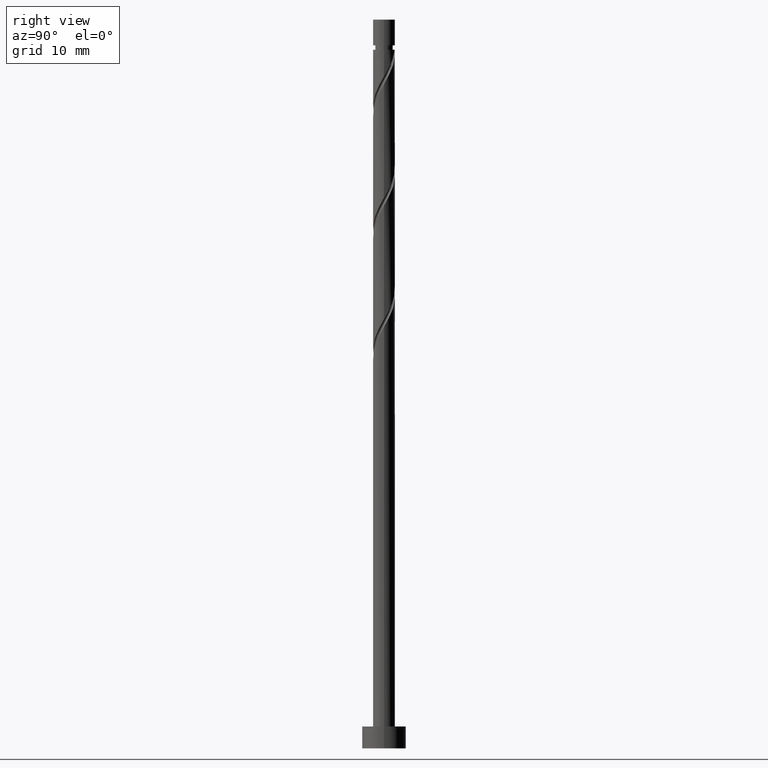
[diagram: clean part render]
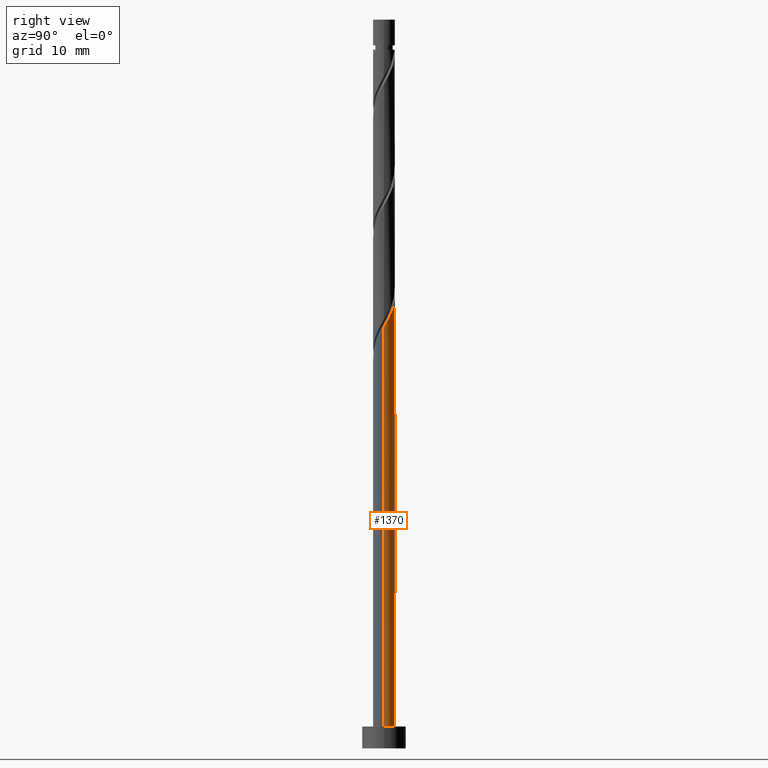
[diagram: same view with one face highlighted and labeled with its STEP entity id]
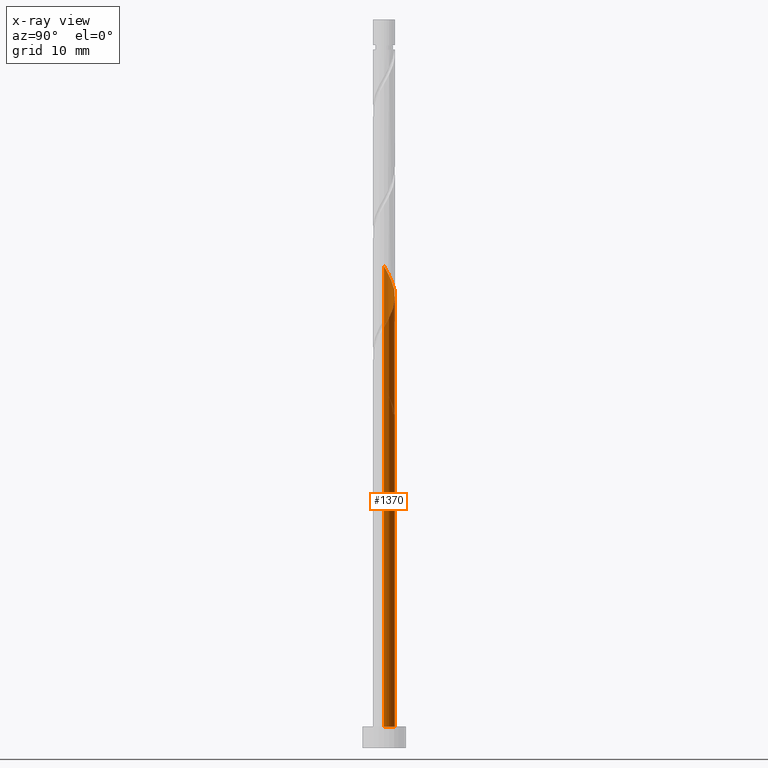
[diagram: x-ray of the same camera — body ghosted, the highlighted face saturated]
A machine part, right view. The second image highlights one B-rep face of the part: STEP entity #1370.
The next image is the same camera in x-ray: the body ghosted, the highlighted face saturated — about 0% of this face is hidden behind the body in this view.
In plain terms, the highlighted cylindrical surface (edge-blend (fillet) strip) has radius 1.5 mm, axis along (-0, -0, -1).
Its self-contained STEP definition (entity closure, byte-faithful):
#3 = CARTESIAN_POINT ( 'NONE',  ( 1.395834070351432699, 0.5492242238340917515, 58.82036622019951722 ) ) ;
#20 = CARTESIAN_POINT ( 'NONE',  ( -1.422305459129120431, 0.4764946809057899468, 65.30184770168098396 ) ) ;
#21 = ORIENTED_EDGE ( 'NONE', *, *, #155, .F. ) ;
#51 = VERTEX_POINT ( 'NONE', #958 ) ;
#62 = EDGE_CURVE ( 'NONE', #1310, #51, #1479, .T. ) ;
#76 = CARTESIAN_POINT ( 'NONE',  ( -0.7832643164158661353, 1.279256428801353929, 46.78332918316247202 ) ) ;
#98 = CARTESIAN_POINT ( 'NONE',  ( -0.2984962311319859229, 1.470000000000002638, 45.85740325723654109 ) ) ;
#127 = CARTESIAN_POINT ( 'NONE',  ( -1.500000000000000222, 0.000000000000000000, 100.0000000000000000 ) ) ;
#136 = CARTESIAN_POINT ( 'NONE',  ( -0.5576968927734301529, 1.417367060811643542, 62.98703288686617441 ) ) ;
#150 = CARTESIAN_POINT ( 'NONE',  ( 0.000000000000000000, 0.000000000000000000, 3.000000000000000000 ) ) ;
#155 = EDGE_CURVE ( 'NONE', #1443, #458, #1381, .T. ) ;
#164 = CARTESIAN_POINT ( 'NONE',  ( 0.000000000000000000, 0.000000000000000000, 100.0000000000000000 ) ) ;
#202 = CARTESIAN_POINT ( 'NONE',  ( -1.422305459129120431, 0.4764946809057899468, 48.63518103501434098 ) ) ;
#227 = CARTESIAN_POINT ( 'NONE',  ( -1.500000000000000222, 1.599963317172324716E-14, 50.55492481222527346 ) ) ;
#241 = CARTESIAN_POINT ( 'NONE',  ( 1.492677119472048064, 0.3031010166390168403, 58.35740325723656241 ) ) ;
#275 = CARTESIAN_POINT ( 'NONE',  ( -1.499500723504462174, 0.03869858149331632108, 50.48703288686618151 ) ) ;
#283 = VERTEX_POINT ( 'NONE', #652 ) ;
#287 = EDGE_LOOP ( 'NONE', ( #695, #1054, #1359, #21, #703, #642, #863, #674 ) ) ;
#290 = CARTESIAN_POINT ( 'NONE',  ( -1.173559165389830294, 0.9342156524751292768, 47.70925510908840295 ) ) ;
#297 = CARTESIAN_POINT ( 'NONE',  ( -0.4838453794137441144, 1.444246813430079435, 47.24629214612541972 ) ) ;
#313 = CARTESIAN_POINT ( 'NONE',  ( -0.5576968927734301529, 1.417367060811643542, 46.32036622019950300 ) ) ;
#315 = CARTESIAN_POINT ( 'NONE',  ( -1.500000000000002665, -3.111039783390612723E-15, 66.15988170224781584 ) ) ;
#322 = CARTESIAN_POINT ( 'NONE',  ( -1.338286590721358804, 0.7272855081591944604, 48.17221807205135775 ) ) ;
#329 = CARTESIAN_POINT ( 'NONE',  ( -0.7832643164158661353, 1.279256428801353929, 63.44999584982913632 ) ) ;
#332 = VECTOR ( 'NONE', #1391, 1000.000000000000000 ) ;
#347 = CARTESIAN_POINT ( 'NONE',  ( -1.500000000000000222, 0.000000000000000000, 100.0000000000000000 ) ) ;
#354 = CARTESIAN_POINT ( 'NONE',  ( -0.03929556949054227588, 1.522632939188361734, 62.06110696094025059 ) ) ;
#362 = CARTESIAN_POINT ( 'NONE',  ( -1.500000000000002665, -3.111039783390612328E-15, 66.15988170224781584 ) ) ;
#381 = EDGE_CURVE ( 'NONE', #1320, #51, #910, .T. ) ;
#383 = CARTESIAN_POINT ( 'NONE',  ( 0.03929556949054253956, 1.522632939188359069, 46.32036622019948879 ) ) ;
#396 = CARTESIAN_POINT ( 'NONE',  ( -1.499999999999999778, 0.01935251149803968868, 50.52090743829292308 ) ) ;
#402 = CARTESIAN_POINT ( 'NONE',  ( 0.2984962311319864781, 1.470000000000000417, 45.85740325723654109 ) ) ;
#407 = DIRECTION ( 'NONE',  ( -1.000000000000000000, 0.000000000000000000, 0.000000000000000000 ) ) ;
#411 = CARTESIAN_POINT ( 'NONE',  ( -1.500000000000002442, 1.060666624829452762E-15, 49.49321503558111601 ) ) ;
#455 = CARTESIAN_POINT ( 'NONE',  ( 1.499500723504464617, 0.03869858149331611291, 57.89444029427359339 ) ) ;
#458 = VERTEX_POINT ( 'NONE', #1262 ) ;
#464 = CARTESIAN_POINT ( 'NONE',  ( -1.500000000000005329, 0.2445815577306776900, 65.72996218988220107 ) ) ;
#467 = EDGE_CURVE ( 'NONE', #1303, #1310, #812, .T. ) ;
#505 = CARTESIAN_POINT ( 'NONE',  ( -1.123809227997131899, 0.9935053190942115808, 48.63518103501432677 ) ) ;
#512 = EDGE_CURVE ( 'NONE', #283, #1303, #706, .T. ) ;
#536 = EDGE_CURVE ( 'NONE', #283, #559, #929, .T. ) ;
#547 = AXIS2_PLACEMENT_3D ( 'NONE', #150, #1425, #1063 ) ;
#559 = VERTEX_POINT ( 'NONE', #1367 ) ;
#575 = CARTESIAN_POINT ( 'NONE',  ( -1.008831740058302451, 1.141145796791064315, 63.91295881279211955 ) ) ;
#600 = DIRECTION ( 'NONE',  ( -0.000000000000000000, -0.000000000000000000, -1.000000000000000000 ) ) ;
#640 =( BOUNDED_CURVE ( )  B_SPLINE_CURVE ( 2, ( #1450, #313, #76, #1234, #290, #322, #202, #773, #411 ),
 .UNSPECIFIED., .F., .T. ) 
 B_SPLINE_CURVE_WITH_KNOTS ( ( 3, 2, 2, 2, 3 ),
 ( 0.000000000000000000, 0.01388888888888883955, 0.02777777777777779011, 0.04166666666666662966, 0.05452480538552896550 ),
 .UNSPECIFIED. ) 
 CURVE ( )  GEOMETRIC_REPRESENTATION_ITEM ( )  RATIONAL_B_SPLINE_CURVE ( ( 0.9090909090909138346, 0.8952797754656482976, 0.9090909090909138346, 0.8952797754656482976, 0.9090909090909138346, 0.8952797754656482976, 0.9090909090909138346, 0.8963047551055884909, 0.9071930855141259187 ) ) 
 REPRESENTATION_ITEM ( '' )  );
#642 = ORIENTED_EDGE ( 'NONE', *, *, #381, .T. ) ;
#652 = CARTESIAN_POINT ( 'NONE',  ( 1.500000000000002442, -1.079340333013069849E-15, 57.82654836891445171 ) ) ;
#671 = EDGE_CURVE ( 'NONE', #559, #458, #1468, .T. ) ;
#674 = ORIENTED_EDGE ( 'NONE', *, *, #467, .F. ) ;
#675 = AXIS2_PLACEMENT_3D ( 'NONE', #164, #600, #1073 ) ;
#683 = CARTESIAN_POINT ( 'NONE',  ( 0.4838453794137458908, 1.444246813430081433, 61.13518103501431966 ) ) ;
#695 = ORIENTED_EDGE ( 'NONE', *, *, #512, .F. ) ;
#703 = ORIENTED_EDGE ( 'NONE', *, *, #851, .F. ) ;
#706 =( BOUNDED_CURVE ( )  B_SPLINE_CURVE ( 2, ( #1257, #1274, #455, #241, #3, #1035, #1482, #1022, #1160, #683, #1383, #354, #802, #136, #329, #575, #1044, #788, #20, #464, #362 ),
 .UNSPECIFIED., .F., .T. ) 
 B_SPLINE_CURVE_WITH_KNOTS ( ( 3, 2, 2, 2, 2, 2, 2, 2, 2, 2, 3 ),
 ( 0.1795248053855289516, 0.1805555555555555802, 0.1944444444444444198, 0.2083333333333333703, 0.2222222222222222099, 0.2361111111111111605, 0.2500000000000000000, 0.2638888888888888395, 0.2777777777777777901, 0.2916666666666666297, 0.3045248053855295067 ),
 .UNSPECIFIED. ) 
 CURVE ( )  GEOMETRIC_REPRESENTATION_ITEM ( )  RATIONAL_B_SPLINE_CURVE ( ( 0.9071930855141259187, 0.9080659294509736412, 0.9090909090909138346, 0.8952797754656482976, 0.9090909090909138346, 0.8952797754656482976, 0.9090909090909138346, 0.8952797754656482976, 0.9090909090909138346, 0.8952797754656482976, 0.9090909090909138346, 0.8952797754656482976, 0.9090909090909138346, 0.8952797754656482976, 0.9090909090909138346, 0.8952797754656482976, 0.9090909090909138346, 0.8952797754656482976, 0.9090909090909138346, 0.8963047551055879358, 0.9071930855141268069 ) ) 
 REPRESENTATION_ITEM ( '' )  );
#731 = CARTESIAN_POINT ( 'NONE',  ( -1.492677119472045844, 0.3031010166390170069, 50.02406992390319118 ) ) ;
#773 = CARTESIAN_POINT ( 'NONE',  ( -1.500000000000001776, 0.2445815577306875432, 49.06329552321550125 ) ) ;
#788 = CARTESIAN_POINT ( 'NONE',  ( -1.338286590721358804, 0.7272855081591944604, 64.83888473871805047 ) ) ;
#796 = CARTESIAN_POINT ( 'NONE',  ( 1.500000000000000222, 1.836970198721029934E-16, 100.0000000000000000 ) ) ;
#802 = CARTESIAN_POINT ( 'NONE',  ( -0.2984962311319859229, 1.470000000000002860, 62.52406992390323381 ) ) ;
#812 = LINE ( 'NONE', #347, #1136 ) ;
#851 = EDGE_CURVE ( 'NONE', #1320, #1443, #640, .T. ) ;
#863 = ORIENTED_EDGE ( 'NONE', *, *, #62, .F. ) ;
#874 = CARTESIAN_POINT ( 'NONE',  ( 0.000000000000000000, 0.000000000000000000, 45.85740325723654109 ) ) ;
#910 = CIRCLE ( 'NONE', #1230, 1.500000000000000222 ) ;
#921 = DIRECTION ( 'NONE',  ( -0.000000000000000000, -0.000000000000000000, -1.000000000000000000 ) ) ;
#929 = LINE ( 'NONE', #796, #332 ) ;
#951 = CYLINDRICAL_SURFACE ( 'NONE', #675, 1.500000000000000222 ) ;
#958 = CARTESIAN_POINT ( 'NONE',  ( 0.2984962311319864781, 1.470000000000000417, 45.85740325723654109 ) ) ;
#984 = CARTESIAN_POINT ( 'NONE',  ( -0.2222749049616008221, 1.483439876309219363, 46.78332918316248623 ) ) ;
#1022 = CARTESIAN_POINT ( 'NONE',  ( 0.9486274347634513493, 1.191663207159258331, 60.20925510908839584 ) ) ;
#1035 = CARTESIAN_POINT ( 'NONE',  ( 1.298991021230816889, 0.7953474310291662741, 59.28332918316246491 ) ) ;
#1044 = CARTESIAN_POINT ( 'NONE',  ( -1.173559165389830294, 0.9342156524751292768, 64.37592177575507435 ) ) ;
#1047 = DIRECTION ( 'NONE',  ( -0.000000000000000000, -0.000000000000000000, -1.000000000000000000 ) ) ;
#1054 = ORIENTED_EDGE ( 'NONE', *, *, #536, .T. ) ;
#1063 = DIRECTION ( 'NONE',  ( 1.000000000000000000, 0.000000000000000000, 0.000000000000000000 ) ) ;
#1073 = DIRECTION ( 'NONE',  ( -1.000000000000000000, 0.000000000000000000, 0.000000000000000000 ) ) ;
#1090 = CARTESIAN_POINT ( 'NONE',  ( -1.395834070351430256, 0.5492242238340916405, 49.56110696094025059 ) ) ;
#1136 = VECTOR ( 'NONE', #921, 1000.000000000000000 ) ;
#1160 = CARTESIAN_POINT ( 'NONE',  ( 0.7162364070885985923, 1.317955010294669549, 60.67221807205135065 ) ) ;
#1199 = FACE_OUTER_BOUND ( 'NONE', #287, .T. ) ;
#1205 = CARTESIAN_POINT ( 'NONE',  ( -1.298991021230814225, 0.7953474310291664962, 49.09814399797728157 ) ) ;
#1230 = AXIS2_PLACEMENT_3D ( 'NONE', #874, #1446, #407 ) ;
#1234 = CARTESIAN_POINT ( 'NONE',  ( -1.008831740058302451, 1.141145796791064315, 47.24629214612542683 ) ) ;
#1257 = CARTESIAN_POINT ( 'NONE',  ( 1.500000000000002442, -1.079340333013069849E-15, 57.82654836891445171 ) ) ;
#1262 = CARTESIAN_POINT ( 'NONE',  ( -1.500000000000000222, 0.000000000000000000, 3.000000000000000000 ) ) ;
#1272 = VECTOR ( 'NONE', #1047, 1000.000000000000000 ) ;
#1274 = CARTESIAN_POINT ( 'NONE',  ( 1.500000000000002442, 0.01935251149802895768, 57.86056574284681631 ) ) ;
#1303 = VERTEX_POINT ( 'NONE', #315 ) ;
#1310 = VERTEX_POINT ( 'NONE', #227 ) ;
#1320 = VERTEX_POINT ( 'NONE', #98 ) ;
#1336 = CARTESIAN_POINT ( 'NONE',  ( -1.500000000000002442, 1.060666624829452762E-15, 49.49321503558111601 ) ) ;
#1337 = CARTESIAN_POINT ( 'NONE',  ( -0.9486274347634494619, 1.191663207159257221, 48.17221807205135775 ) ) ;
#1359 = ORIENTED_EDGE ( 'NONE', *, *, #671, .T. ) ;
#1367 = CARTESIAN_POINT ( 'NONE',  ( 1.500000000000000222, 1.836970198721029934E-16, 3.000000000000000000 ) ) ;
#1370 = ADVANCED_FACE ( 'NONE', ( #1199 ), #951, .T. ) ;
#1381 = LINE ( 'NONE', #127, #1272 ) ;
#1383 = CARTESIAN_POINT ( 'NONE',  ( 0.2222749049616024597, 1.483439876309220917, 61.59814399797728868 ) ) ;
#1391 = DIRECTION ( 'NONE',  ( -0.000000000000000000, -0.000000000000000000, -1.000000000000000000 ) ) ;
#1424 = CARTESIAN_POINT ( 'NONE',  ( -1.500000000000000222, 1.599963317172324716E-14, 50.55492481222527346 ) ) ;
#1425 = DIRECTION ( 'NONE',  ( 0.000000000000000000, 0.000000000000000000, 1.000000000000000000 ) ) ;
#1433 = CARTESIAN_POINT ( 'NONE',  ( -0.7162364070885967049, 1.317955010294668217, 47.70925510908841005 ) ) ;
#1443 = VERTEX_POINT ( 'NONE', #1336 ) ;
#1446 = DIRECTION ( 'NONE',  ( 0.000000000000000000, -0.000000000000000000, -1.000000000000000000 ) ) ;
#1450 = CARTESIAN_POINT ( 'NONE',  ( -0.2984962311319859229, 1.470000000000002638, 45.85740325723654109 ) ) ;
#1468 = CIRCLE ( 'NONE', #547, 1.500000000000000222 ) ;
#1479 =( BOUNDED_CURVE ( )  B_SPLINE_CURVE ( 2, ( #1424, #396, #275, #731, #1090, #1205, #505, #1337, #1433, #297, #984, #383, #402 ),
 .UNSPECIFIED., .F., .T. ) 
 B_SPLINE_CURVE_WITH_KNOTS ( ( 3, 2, 2, 2, 2, 2, 3 ),
 ( 0.9295248053855295067, 0.9305555555555555802, 0.9444444444444444198, 0.9583333333333333703, 0.9722222222222222099, 0.9861111111111111605, 1.000000000000000000 ),
 .UNSPECIFIED. ) 
 CURVE ( )  GEOMETRIC_REPRESENTATION_ITEM ( )  RATIONAL_B_SPLINE_CURVE ( ( 0.9071930855141207006, 0.9080659294509680901, 0.9090909090909077284, 0.8952797754656424134, 0.9090909090909077284, 0.8952797754656424134, 0.9090909090909077284, 0.8952797754656424134, 0.9090909090909077284, 0.8952797754656424134, 0.9090909090909077284, 0.8952797754656424134, 0.9090909090909077284 ) ) 
 REPRESENTATION_ITEM ( '' )  );
#1482 = CARTESIAN_POINT ( 'NONE',  ( 1.123809227997133453, 0.9935053190942130241, 59.74629214612544104 ) ) ;